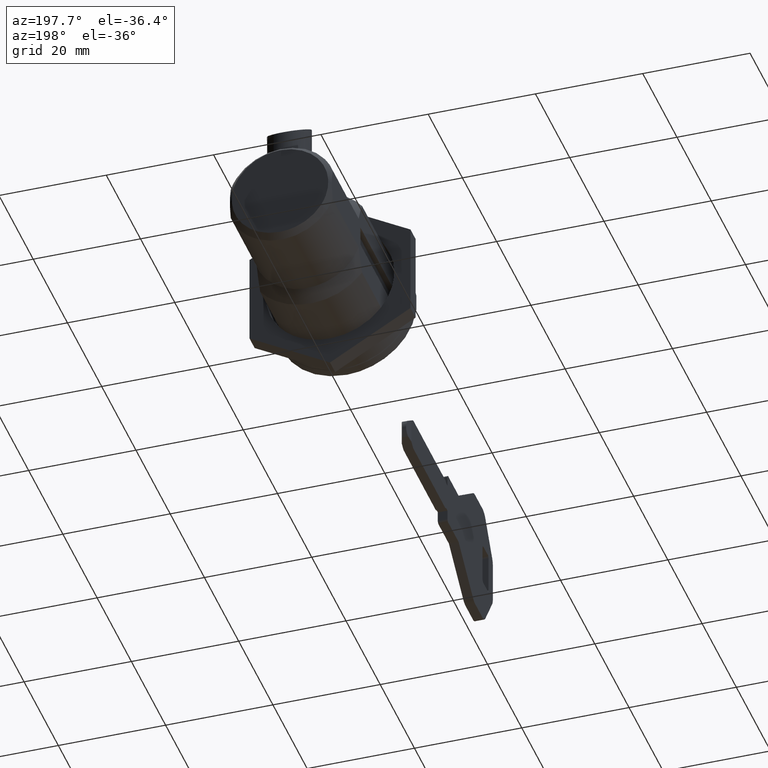
[diagram: clean part render]
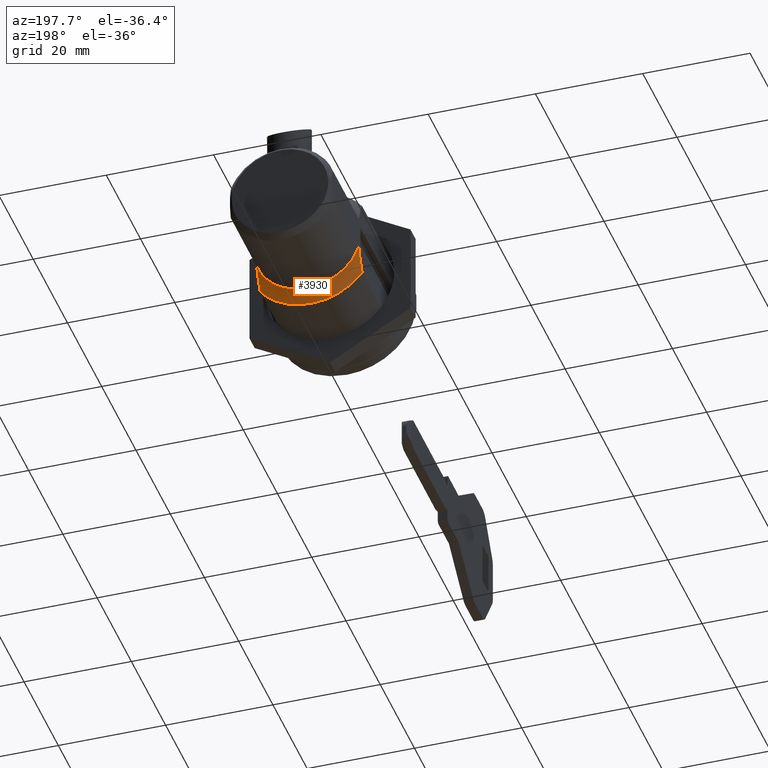
[diagram: same view with one face highlighted and labeled with its STEP entity id]
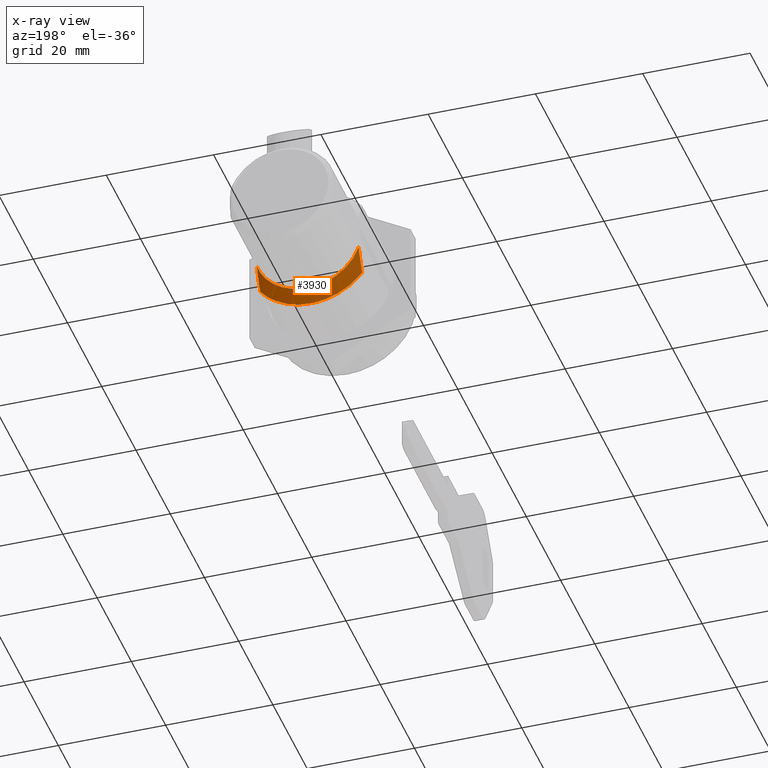
[diagram: x-ray of the same camera — body ghosted, the highlighted face saturated]
A machine part, auxiliary view. The second image highlights one B-rep face of the part: STEP entity #3930.
The next image is the same camera in x-ray: the body ghosted, the highlighted face saturated — about 0% of this face is hidden behind the body in this view.
In plain terms, the highlighted face is a freeform B-spline surface patch.
Its self-contained STEP definition (entity closure, byte-faithful):
#3574=CARTESIAN_POINT('',(22.999999999996149,-9.500000000000000,-7.331439149303010));
#3575=VERTEX_POINT('',#3574);
#3581=CARTESIAN_POINT('',(24.999999999994600,-9.500000000000000,-3.122498999206030));
#3582=VERTEX_POINT('',#3581);
#3583=CARTESIAN_POINT('',(24.999999999994600,-9.500000000000000,-3.122498999206030));
#3584=CARTESIAN_POINT('',(24.925802315456480,-9.500000000000000,-3.360113017408360));
#3585=CARTESIAN_POINT('',(24.844484473515010,-9.500000000000000,-3.596026189899488));
#3586=CARTESIAN_POINT('',(24.641703428164838,-9.500000000000002,-4.138299967345887));
#3587=CARTESIAN_POINT('',(24.515241362049061,-9.500000000000000,-4.444313622897844));
#3588=CARTESIAN_POINT('',(24.247143629279950,-9.500000000000002,-5.044376024315999));
#3589=CARTESIAN_POINT('',(24.105234387028020,-9.500000000000000,-5.339316097446390));
#3590=CARTESIAN_POINT('',(23.660425816012840,-9.500000000000004,-6.211777745940593));
#3591=CARTESIAN_POINT('',(23.338677845099319,-9.499999999999998,-6.777091146594798));
#3592=CARTESIAN_POINT('',(22.999999999996149,-9.500000000000000,-7.331439149303010));
#3593=B_SPLINE_CURVE_WITH_KNOTS('',3,(#3583,#3584,#3585,#3586,#3587,#3588,#3589,#3590,#3591,#3592),.UNSPECIFIED.,.F.,.U.,(4,2,2,2,4),(0.702415608199652,0.750000000000000,0.812500000000000,0.875000000000000,1.0),.UNSPECIFIED.);
#3594=EDGE_CURVE('',#3582,#3575,#3593,.T.);
#3717=CARTESIAN_POINT('',(22.999999999996149,9.500000000000000,-7.331439149303040));
#3718=VERTEX_POINT('',#3717);
#3755=CARTESIAN_POINT('',(24.999999999994600,9.500000000000000,-3.122498999206030));
#3756=VERTEX_POINT('',#3755);
#3762=CARTESIAN_POINT('',(22.999999999996149,9.500000000000000,-7.331439149303040));
#3763=CARTESIAN_POINT('',(23.338770416341411,9.499999999999998,-6.776944334121098));
#3764=CARTESIAN_POINT('',(23.659950687454948,9.499999999999998,-6.212474141379486));
#3765=CARTESIAN_POINT('',(24.103011907616640,9.500000000000000,-5.343816858956917));
#3766=CARTESIAN_POINT('',(24.244192524736668,9.499999999999998,-5.050574617840720));
#3767=CARTESIAN_POINT('',(24.510639027513399,9.500000000000000,-4.455064885787134));
#3768=CARTESIAN_POINT('',(24.635910985293791,9.499999999999998,-4.152800838353224));
#3769=CARTESIAN_POINT('',(24.809136208425510,9.500000000000002,-3.691078195180285));
#3770=CARTESIAN_POINT('',(24.864493921575779,9.499999999999998,-3.535569304263111));
#3771=CARTESIAN_POINT('',(24.945572839315538,9.500000000000004,-3.293626041992283));
#3772=CARTESIAN_POINT('',(24.973260348937281,9.500000000000002,-3.208134405823119));
#3773=CARTESIAN_POINT('',(24.999999999994600,9.500000000000000,-3.122498999206030));
#3774=B_SPLINE_CURVE_WITH_KNOTS('',3,(#3762,#3763,#3764,#3765,#3766,#3767,#3768,#3769,#3770,#3771,#3772,#3773),.UNSPECIFIED.,.F.,.U.,(4,2,2,2,2,4),(0.0,0.125000000000000,0.187500000000000,0.250000000000000,0.281250000000000,0.298283462028832),.UNSPECIFIED.);
#3775=EDGE_CURVE('',#3718,#3756,#3774,.T.);
#3878=CARTESIAN_POINT('',(25.049999999994611,-9.549812691350992,-2.793488421336217));
#3879=CARTESIAN_POINT('',(22.948749999994391,-11.566550773531871,-3.383419832927376));
#3880=CARTESIAN_POINT('',(25.049999999994608,-7.406293635053058,-10.121317429553823));
#3881=CARTESIAN_POINT('',(22.948749999994387,-8.970361424063514,-12.258746399287300));
#3882=CARTESIAN_POINT('',(25.049999999994611,0.226629209924626,-9.947418720514309));
#3883=CARTESIAN_POINT('',(22.948749999994391,0.274488971467749,-12.048123603577510));
#3884=CARTESIAN_POINT('',(25.049999999994608,7.859552054902308,-9.773520011474794));
#3885=CARTESIAN_POINT('',(22.948749999994387,9.519339366999009,-11.837500807867714));
#3886=CARTESIAN_POINT('',(25.049999999994611,9.667124602761051,-2.355674407620849));
#3887=CARTESIAN_POINT('',(22.948749999994391,11.708636720504780,-2.853147859782931));
#3895=(BOUNDED_SURFACE()B_SPLINE_SURFACE(1,2,((#3878,#3880,#3882,#3884,#3886),(#3879,#3881,#3883,#3885,#3887)),.UNSPECIFIED.,.F.,.F.,.U.)B_SPLINE_SURFACE_WITH_KNOTS((2,2),(3,2,3),(0.0,2.971616247936709),(0.0,16.363392548511069,32.726785097022152),.UNSPECIFIED.)GEOMETRIC_REPRESENTATION_ITEM()RATIONAL_B_SPLINE_SURFACE(((1.0,0.793353340291235,1.0,0.793353340291235,1.0),(1.0,0.793353340291235,1.0,0.793353340291235,1.0)))REPRESENTATION_ITEM('')SURFACE());
#3896=CARTESIAN_POINT('',(24.999999999994600,9.500000000000000,-3.122498999206030));
#3897=CARTESIAN_POINT('',(24.999999999994603,7.239474737681205,-10.000000000001513));
#3898=CARTESIAN_POINT('',(24.999999999994600,0.0,-10.000000000001521));
#3899=CARTESIAN_POINT('',(24.999999999994603,-7.239474737681205,-10.000000000001513));
#3900=CARTESIAN_POINT('',(24.999999999994600,-9.500000000000000,-3.122498999206030));
#3908=(BOUNDED_CURVE()B_SPLINE_CURVE(2,(#3896,#3897,#3898,#3899,#3900),.UNSPECIFIED.,.F.,.U.)B_SPLINE_CURVE_WITH_KNOTS((3,2,3),(0.0,0.500000000000000,1.0),.UNSPECIFIED.)CURVE()GEOMETRIC_REPRESENTATION_ITEM()RATIONAL_B_SPLINE_CURVE((1.0,0.810015401063624,1.0,0.810015401063624,1.0))REPRESENTATION_ITEM(''));
#3909=EDGE_CURVE('',#3756,#3582,#3908,.T.);
#3910=ORIENTED_EDGE('',*,*,#3909,.T.);
#3911=ORIENTED_EDGE('',*,*,#3594,.T.);
#3912=CARTESIAN_POINT('',(22.999999999996149,9.500000000000000,-7.331439149303040));
#3913=CARTESIAN_POINT('',(22.999999999994397,5.897129495614496,-12.000000000001615));
#3914=CARTESIAN_POINT('',(22.999999999994401,0.0,-12.000000000001620));
#3915=CARTESIAN_POINT('',(22.999999999994397,-5.897129495614509,-12.000000000001615));
#3916=CARTESIAN_POINT('',(22.999999999996149,-9.500000000000000,-7.331439149303010));
#3924=(BOUNDED_CURVE()B_SPLINE_CURVE(2,(#3912,#3913,#3914,#3915,#3916),.UNSPECIFIED.,.F.,.U.)B_SPLINE_CURVE_WITH_KNOTS((3,2,3),(0.0,0.500000000000000,1.0),.UNSPECIFIED.)CURVE()GEOMETRIC_REPRESENTATION_ITEM()RATIONAL_B_SPLINE_CURVE((1.0,0.897483499135793,1.0,0.897483499135793,1.0))REPRESENTATION_ITEM(''));
#3925=EDGE_CURVE('',#3718,#3575,#3924,.T.);
#3926=ORIENTED_EDGE('',*,*,#3925,.F.);
#3927=ORIENTED_EDGE('',*,*,#3775,.T.);
#3928=EDGE_LOOP('',(#3910,#3911,#3926,#3927));
#3929=FACE_OUTER_BOUND('',#3928,.T.);
#3930=ADVANCED_FACE('',(#3929),#3895,.T.);